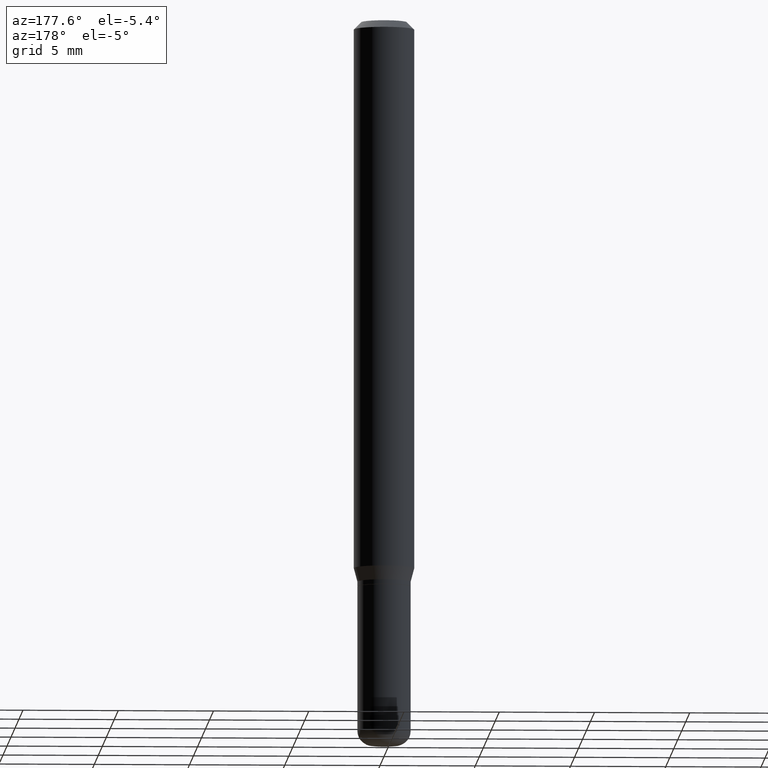
[diagram: clean part render]
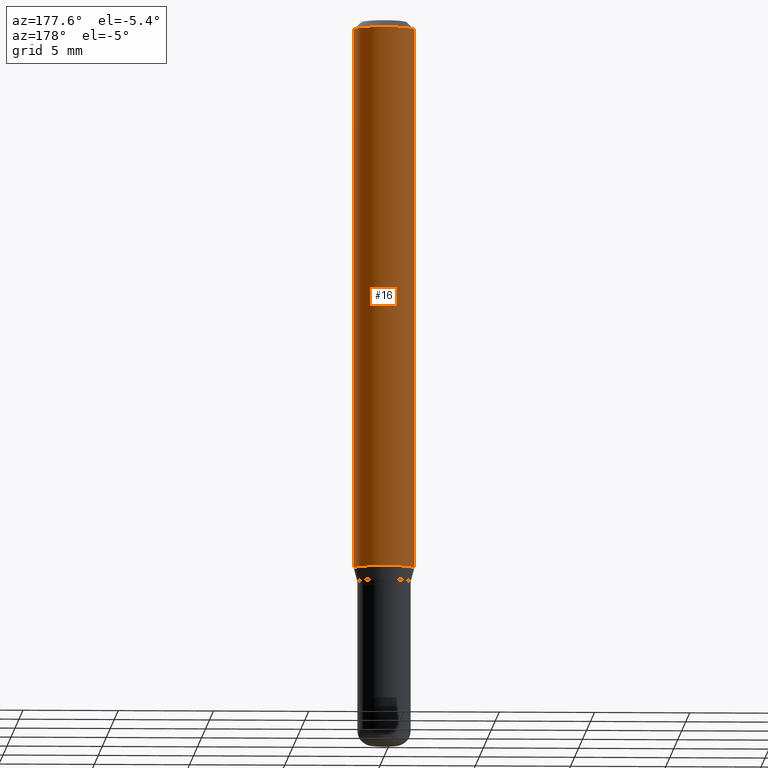
[diagram: same view with one face highlighted and labeled with its STEP entity id]
A machine part, auxiliary view. The second image highlights one B-rep face of the part: STEP entity #16.
In plain terms, the highlighted cylindrical surface (edge-blend (fillet) strip) has radius 1.5875 mm, axis along (-0, 0, 1).
Its self-contained STEP definition (entity closure, byte-faithful):
#6 = DIRECTION ( 'NONE',  ( -2.445468806185136877E-29, 3.491481338843145188E-15, 1.000000000000000000 ) ) ;
#10 = VERTEX_POINT ( 'NONE', #172 ) ;
#16 = ADVANCED_FACE ( 'NONE', ( #56 ), #494, .T. ) ;
#25 = EDGE_CURVE ( 'NONE', #120, #345, #310, .T. ) ;
#36 = AXIS2_PLACEMENT_3D ( 'NONE', #289, #460, #88 ) ;
#39 = CARTESIAN_POINT ( 'NONE',  ( -0.06250000000000000000, -1.558292130156881494E-15, -0.01499999999999970281 ) ) ;
#41 = CARTESIAN_POINT ( 'NONE',  ( 0.06250000000000000000, -4.888073874380378612E-16, -0.01499999999999970281 ) ) ;
#50 = DIRECTION ( 'NONE',  ( 1.000000000000000000, -6.982962677686266711E-15, 4.876176775795935793E-29 ) ) ;
#56 = FACE_OUTER_BOUND ( 'NONE', #456, .T. ) ;
#60 = EDGE_CURVE ( 'NONE', #10, #345, #294, .T. ) ;
#67 = DIRECTION ( 'NONE',  ( -2.445468806185136877E-29, 3.491481338843145188E-15, 1.000000000000000000 ) ) ;
#88 = DIRECTION ( 'NONE',  ( 1.000000000000000000, -6.982962677686270655E-15, 0.000000000000000000 ) ) ;
#92 = DIRECTION ( 'NONE',  ( -2.445468806185136597E-29, 3.491481338843145583E-15, 1.000000000000000000 ) ) ;
#106 = AXIS2_PLACEMENT_3D ( 'NONE', #163, #92, #219 ) ;
#116 = LINE ( 'NONE', #274, #361 ) ;
#118 = CIRCLE ( 'NONE', #36, 0.06250000000000000000 ) ;
#120 = VERTEX_POINT ( 'NONE', #41 ) ;
#163 = CARTESIAN_POINT ( 'NONE',  ( 3.668203209277632395E-31, -5.237222008264614861E-17, -0.01499999999999970281 ) ) ;
#172 = CARTESIAN_POINT ( 'NONE',  ( -0.06250000000000000000, -3.508301250081179708E-15, -1.132009618943234042 ) ) ;
#199 = CARTESIAN_POINT ( 'NONE',  ( -0.06250000000000000000, 4.440892098500626162E-16, -3.074334431409316114E-30 ) ) ;
#204 = EDGE_CURVE ( 'NONE', #414, #120, #116, .T. ) ;
#208 = ORIENTED_EDGE ( 'NONE', *, *, #60, .T. ) ;
#216 = VECTOR ( 'NONE', #6, 39.37007874015748143 ) ;
#219 = DIRECTION ( 'NONE',  ( 1.000000000000000000, -6.982962677686266711E-15, 0.000000000000000000 ) ) ;
#225 = AXIS2_PLACEMENT_3D ( 'NONE', #255, #427, #50 ) ;
#255 = CARTESIAN_POINT ( 'NONE',  ( 0.000000000000000000, 0.000000000000000000, 0.000000000000000000 ) ) ;
#274 = CARTESIAN_POINT ( 'NONE',  ( 0.06250000000000000000, -4.364351673553916694E-16, 3.047610484872459871E-30 ) ) ;
#289 = CARTESIAN_POINT ( 'NONE',  ( 2.768294211427201767E-29, -3.952390459931241535E-15, -1.132009618943234042 ) ) ;
#294 = LINE ( 'NONE', #199, #216 ) ;
#301 = EDGE_CURVE ( 'NONE', #414, #10, #118, .T. ) ;
#310 = CIRCLE ( 'NONE', #106, 0.06250000000000000000 ) ;
#345 = VERTEX_POINT ( 'NONE', #39 ) ;
#361 = VECTOR ( 'NONE', #67, 39.37007874015748143 ) ;
#375 = ORIENTED_EDGE ( 'NONE', *, *, #25, .F. ) ;
#388 = ORIENTED_EDGE ( 'NONE', *, *, #204, .F. ) ;
#414 = VERTEX_POINT ( 'NONE', #503 ) ;
#427 = DIRECTION ( 'NONE',  ( -2.445468806185136597E-29, 3.491481338843145583E-15, 1.000000000000000000 ) ) ;
#456 = EDGE_LOOP ( 'NONE', ( #487, #208, #375, #388 ) ) ;
#460 = DIRECTION ( 'NONE',  ( -2.445468806185136597E-29, 3.491481338843145583E-15, 1.000000000000000000 ) ) ;
#487 = ORIENTED_EDGE ( 'NONE', *, *, #301, .T. ) ;
#494 = CYLINDRICAL_SURFACE ( 'NONE', #225, 0.06250000000000000000 ) ;
#503 = CARTESIAN_POINT ( 'NONE',  ( 0.06250000000000000000, -4.388825627286632416E-15, -1.132009618943234042 ) ) ;